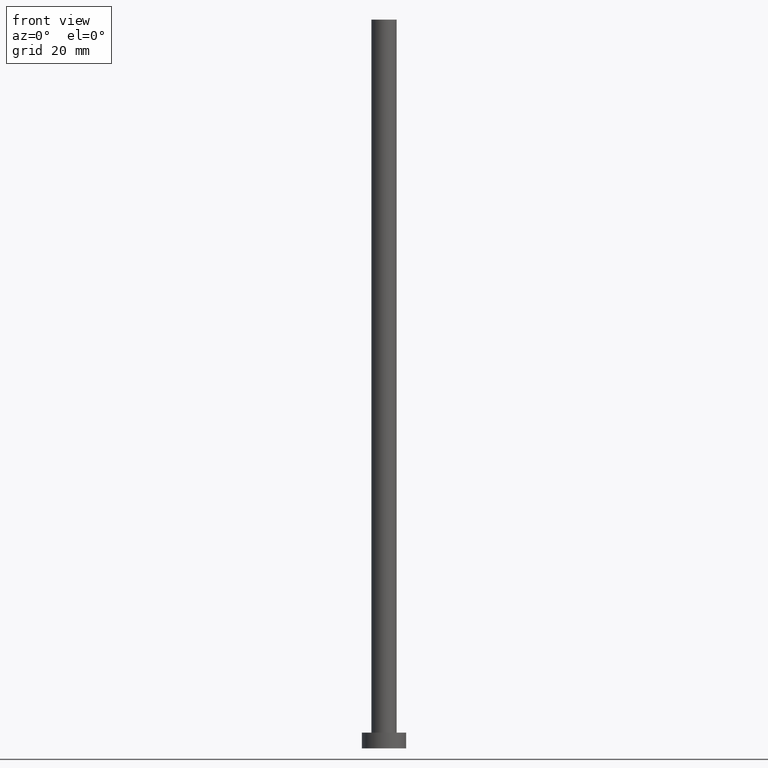
[diagram: clean part render]
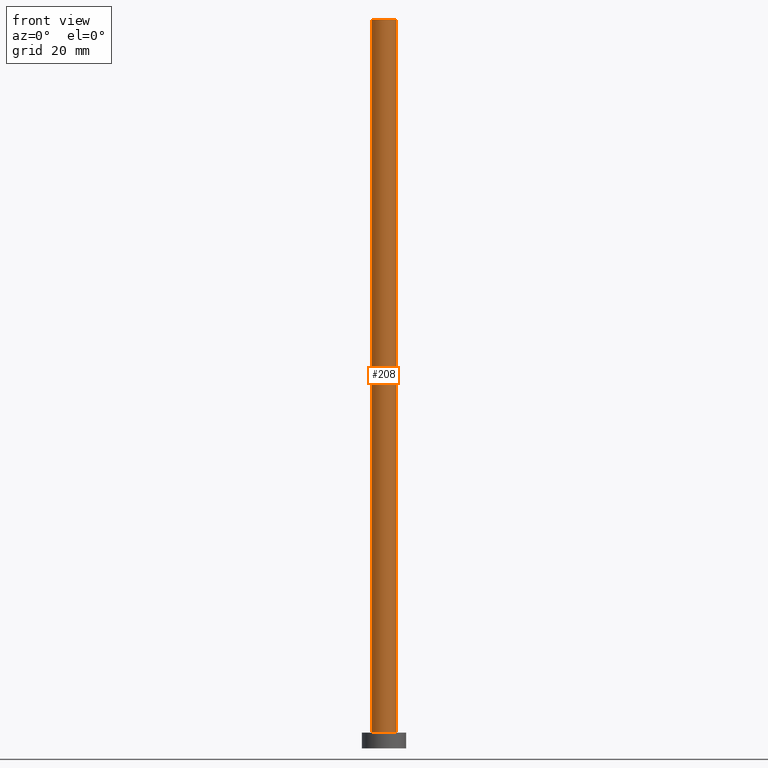
[diagram: same view with one face highlighted and labeled with its STEP entity id]
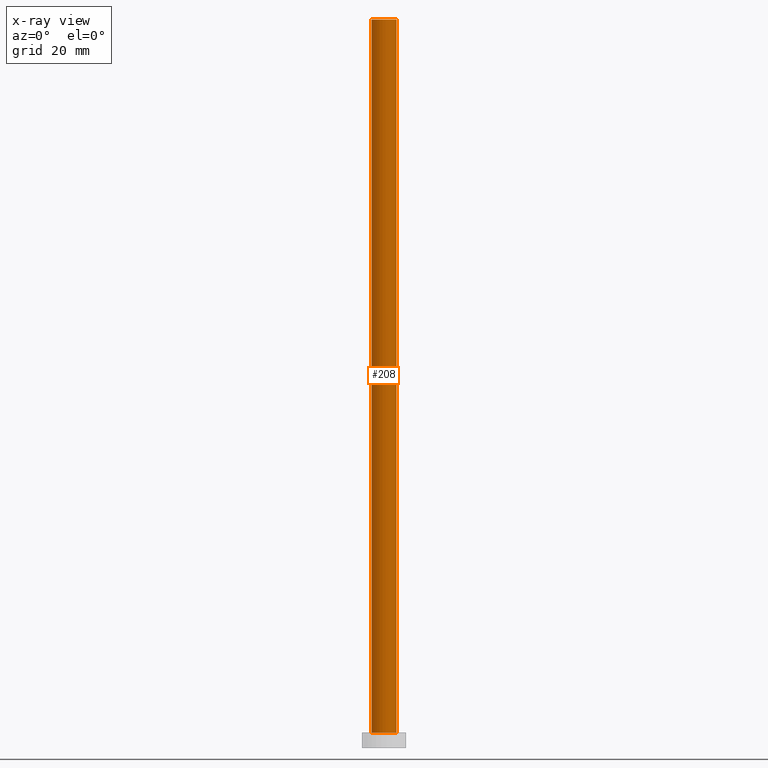
[diagram: x-ray of the same camera — body ghosted, the highlighted face saturated]
A machine part, front view. The second image highlights one B-rep face of the part: STEP entity #208.
The next image is the same camera in x-ray: the body ghosted, the highlighted face saturated — about 0% of this face is hidden behind the body in this view.
In plain terms, the highlighted cylindrical surface (edge-blend (fillet) strip) has radius 4 mm, axis along (-0, -0, -1).
Its self-contained STEP definition (entity closure, byte-faithful):
#12 = CIRCLE ( 'NONE', #138, 4.000000000000000000 ) ;
#13 = CIRCLE ( 'NONE', #123, 4.000000000000000000 ) ;
#17 = CARTESIAN_POINT ( 'NONE',  ( 0.000000000000000000, 0.000000000000000000, 231.0000000000000000 ) ) ;
#26 = VERTEX_POINT ( 'NONE', #77 ) ;
#27 = ORIENTED_EDGE ( 'NONE', *, *, #161, .F. ) ;
#34 = DIRECTION ( 'NONE',  ( -0.000000000000000000, -0.000000000000000000, -1.000000000000000000 ) ) ;
#47 = VERTEX_POINT ( 'NONE', #152 ) ;
#48 = LINE ( 'NONE', #210, #124 ) ;
#51 = EDGE_LOOP ( 'NONE', ( #72, #27, #122, #187 ) ) ;
#54 = DIRECTION ( 'NONE',  ( -0.000000000000000000, -0.000000000000000000, -1.000000000000000000 ) ) ;
#72 = ORIENTED_EDGE ( 'NONE', *, *, #117, .F. ) ;
#77 = CARTESIAN_POINT ( 'NONE',  ( 4.000000000000000000, 4.898587196589412829E-16, 5.000000000000000000 ) ) ;
#79 = LINE ( 'NONE', #213, #201 ) ;
#80 = DIRECTION ( 'NONE',  ( 0.000000000000000000, 0.000000000000000000, 1.000000000000000000 ) ) ;
#81 = DIRECTION ( 'NONE',  ( 1.000000000000000000, 0.000000000000000000, 0.000000000000000000 ) ) ;
#82 = AXIS2_PLACEMENT_3D ( 'NONE', #17, #198, #216 ) ;
#109 = VERTEX_POINT ( 'NONE', #193 ) ;
#117 = EDGE_CURVE ( 'NONE', #121, #26, #48, .T. ) ;
#121 = VERTEX_POINT ( 'NONE', #176 ) ;
#122 = ORIENTED_EDGE ( 'NONE', *, *, #226, .T. ) ;
#123 = AXIS2_PLACEMENT_3D ( 'NONE', #249, #80, #81 ) ;
#124 = VECTOR ( 'NONE', #34, 1000.000000000000000 ) ;
#138 = AXIS2_PLACEMENT_3D ( 'NONE', #178, #196, #232 ) ;
#139 = FACE_OUTER_BOUND ( 'NONE', #51, .T. ) ;
#141 = EDGE_CURVE ( 'NONE', #47, #26, #13, .T. ) ;
#152 = CARTESIAN_POINT ( 'NONE',  ( -4.000000000000000000, 0.000000000000000000, 5.000000000000000000 ) ) ;
#161 = EDGE_CURVE ( 'NONE', #109, #121, #12, .T. ) ;
#176 = CARTESIAN_POINT ( 'NONE',  ( 4.000000000000000000, 4.898587196589412829E-16, 231.0000000000000000 ) ) ;
#178 = CARTESIAN_POINT ( 'NONE',  ( 0.000000000000000000, 0.000000000000000000, 231.0000000000000000 ) ) ;
#187 = ORIENTED_EDGE ( 'NONE', *, *, #141, .T. ) ;
#193 = CARTESIAN_POINT ( 'NONE',  ( -4.000000000000000000, 0.000000000000000000, 231.0000000000000000 ) ) ;
#196 = DIRECTION ( 'NONE',  ( 0.000000000000000000, 0.000000000000000000, 1.000000000000000000 ) ) ;
#198 = DIRECTION ( 'NONE',  ( -0.000000000000000000, -0.000000000000000000, -1.000000000000000000 ) ) ;
#199 = CYLINDRICAL_SURFACE ( 'NONE', #82, 4.000000000000000000 ) ;
#201 = VECTOR ( 'NONE', #54, 1000.000000000000000 ) ;
#208 = ADVANCED_FACE ( 'NONE', ( #139 ), #199, .T. ) ;
#210 = CARTESIAN_POINT ( 'NONE',  ( 4.000000000000000000, 4.898587196589412829E-16, 231.0000000000000000 ) ) ;
#213 = CARTESIAN_POINT ( 'NONE',  ( -4.000000000000000000, 0.000000000000000000, 231.0000000000000000 ) ) ;
#216 = DIRECTION ( 'NONE',  ( -1.000000000000000000, 0.000000000000000000, 0.000000000000000000 ) ) ;
#226 = EDGE_CURVE ( 'NONE', #109, #47, #79, .T. ) ;
#232 = DIRECTION ( 'NONE',  ( 1.000000000000000000, 0.000000000000000000, 0.000000000000000000 ) ) ;
#249 = CARTESIAN_POINT ( 'NONE',  ( 0.000000000000000000, 0.000000000000000000, 5.000000000000000000 ) ) ;